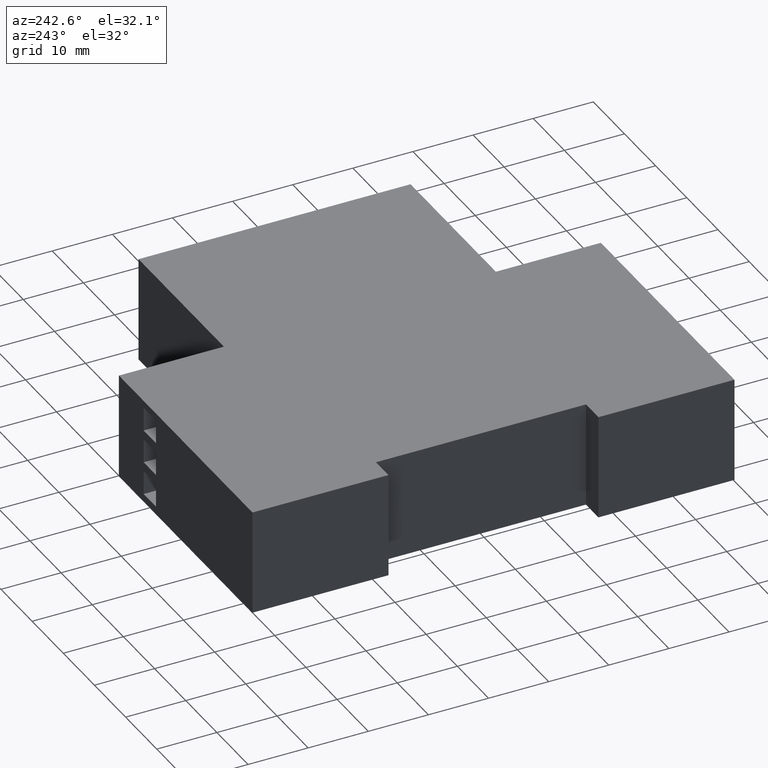
[diagram: clean part render]
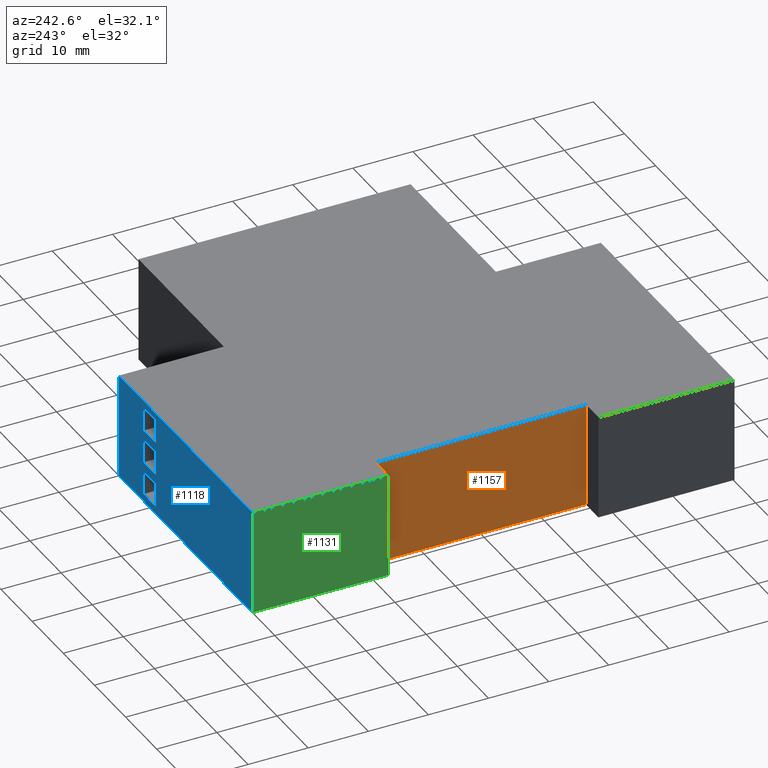
[diagram: same view with three faces highlighted in distinct colors, each labeled with its STEP entity id]
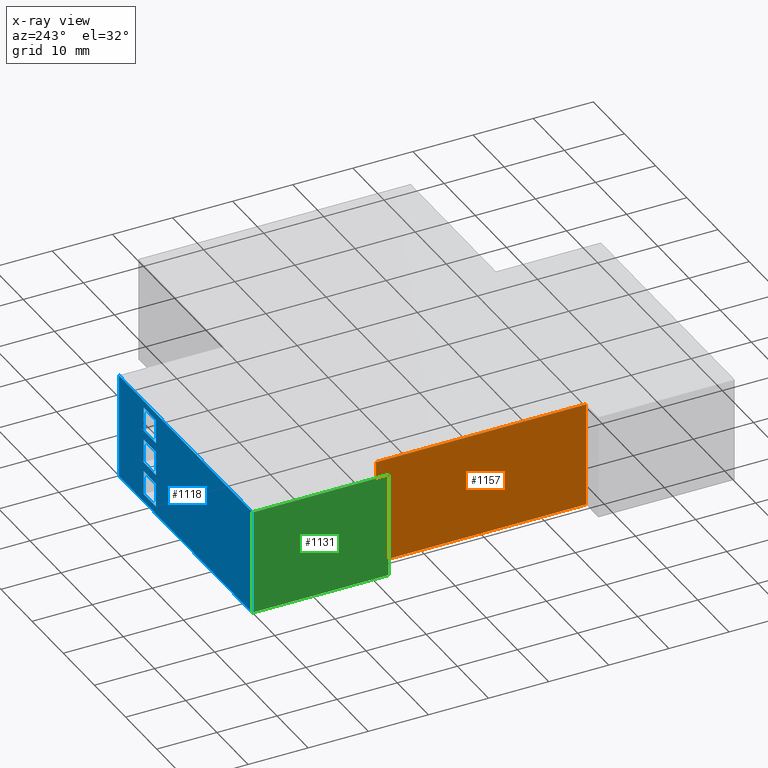
[diagram: x-ray of the same camera — body ghosted, the three highlighted faces saturated]
A machine part, auxiliary view with three faces highlighted in distinct colors.
The next image is the same camera in x-ray (body ghosted, the three faces saturated) — at least one of them is partly hidden behind the body in this view.
Their STEP definitions:

[orange] entity #1157 — the highlighted planar face has unit normal (-1, 0, 0).
#102=DIRECTION('',(0.E0,-1.E0,0.E0));
#103=VECTOR('',#102,1.375E0);
#104=CARTESIAN_POINT('',(-8.330434317903E-1,-8.429706133946E-1,6.875E-1));
#105=LINE('',#104,#103);
#150=DIRECTION('',(0.E0,-1.E0,0.E0));
#151=VECTOR('',#150,1.375E0);
#152=CARTESIAN_POINT('',(-8.330434317903E-1,-8.429706133946E-1,0.E0));
#153=LINE('',#152,#151);
#154=DIRECTION('',(0.E0,0.E0,-1.E0));
#155=VECTOR('',#154,6.875E-1);
#156=CARTESIAN_POINT('',(-8.330434317903E-1,-8.429706133946E-1,6.875E-1));
#157=LINE('',#156,#155);
#162=DIRECTION('',(0.E0,0.E0,-1.E0));
#163=VECTOR('',#162,6.875E-1);
#164=CARTESIAN_POINT('',(-8.330434317903E-1,-2.217970613395E0,6.875E-1));
#165=LINE('',#164,#163);
#898=CARTESIAN_POINT('',(-8.330434317903E-1,-2.217970613395E0,6.875E-1));
#899=VERTEX_POINT('',#898);
#900=CARTESIAN_POINT('',(-8.330434317903E-1,-2.217970613395E0,0.E0));
#901=VERTEX_POINT('',#900);
#902=CARTESIAN_POINT('',(-8.330434317903E-1,-8.429706133946E-1,6.875E-1));
#903=VERTEX_POINT('',#902);
#904=CARTESIAN_POINT('',(-8.330434317903E-1,-8.429706133946E-1,0.E0));
#905=VERTEX_POINT('',#904);
#1145=CARTESIAN_POINT('',(-8.330434317903E-1,-2.217970613395E0,0.E0));
#1146=DIRECTION('',(-1.E0,0.E0,0.E0));
#1147=DIRECTION('',(0.E0,0.E0,1.E0));
#1148=AXIS2_PLACEMENT_3D('',#1145,#1146,#1147);
#1149=PLANE('',#1148);
#1150=ORIENTED_EDGE('',*,*,#1021,.T.);
#1152=ORIENTED_EDGE('',*,*,#1151,.T.);
#1153=ORIENTED_EDGE('',*,*,#1057,.F.);
#1154=ORIENTED_EDGE('',*,*,#1138,.F.);
#1155=EDGE_LOOP('',(#1150,#1152,#1153,#1154));
#1156=FACE_OUTER_BOUND('',#1155,.F.);
#1157=ADVANCED_FACE('',(#1156),#1149,.T.);
#1021=EDGE_CURVE('',#903,#899,#105,.T.);
#1057=EDGE_CURVE('',#905,#901,#153,.T.);
#1138=EDGE_CURVE('',#903,#905,#157,.T.);
#1151=EDGE_CURVE('',#899,#901,#165,.T.);

[blue] entity #1118 — the highlighted planar face has unit normal (0, 1, 0).
#114=DIRECTION('',(-1.E0,0.E0,0.E0));
#115=VECTOR('',#114,1.6875E0);
#116=CARTESIAN_POINT('',(6.969565682097E-1,4.765438660540E-2,6.875E-1));
#117=LINE('',#116,#115);
#126=DIRECTION('',(-1.E0,0.E0,0.E0));
#127=VECTOR('',#126,1.6875E0);
#128=CARTESIAN_POINT('',(6.969565682097E-1,4.765438660540E-2,0.E0));
#129=LINE('',#128,#127);
#130=DIRECTION('',(0.E0,0.E0,-1.E0));
#131=VECTOR('',#130,6.875E-1);
#132=CARTESIAN_POINT('',(6.969565682097E-1,4.765438660540E-2,6.875E-1));
#133=LINE('',#132,#131);
#138=DIRECTION('',(0.E0,0.E0,-1.E0));
#139=VECTOR('',#138,6.875E-1);
#140=CARTESIAN_POINT('',(-9.905434317903E-1,4.765438660540E-2,6.875E-1));
#141=LINE('',#140,#139);
#274=DIRECTION('',(0.E0,0.E0,1.E0));
#275=VECTOR('',#274,1.56E-1);
#276=CARTESIAN_POINT('',(2.284565682097E-1,4.765438660540E-2,4.87E-2));
#277=LINE('',#276,#275);
#324=DIRECTION('',(0.E0,0.E0,-1.E0));
#325=VECTOR('',#324,1.56E-1);
#326=CARTESIAN_POINT('',(3.844565682097E-1,4.765438660540E-2,2.047E-1));
#327=LINE('',#326,#325);
#364=DIRECTION('',(-1.E0,0.E0,0.E0));
#365=VECTOR('',#364,1.56E-1);
#366=CARTESIAN_POINT('',(3.844565682097E-1,4.765438660540E-2,4.87E-2));
#367=LINE('',#366,#365);
#378=DIRECTION('',(1.E0,0.E0,0.E0));
#379=VECTOR('',#378,1.56E-1);
#380=CARTESIAN_POINT('',(2.284565682097E-1,4.765438660540E-2,2.047E-1));
#381=LINE('',#380,#379);
#438=DIRECTION('',(0.E0,0.E0,1.E0));
#439=VECTOR('',#438,1.56E-1);
#440=CARTESIAN_POINT('',(2.284565682097E-1,4.765438660540E-2,2.667E-1));
#441=LINE('',#440,#439);
#488=DIRECTION('',(0.E0,0.E0,-1.E0));
#489=VECTOR('',#488,1.56E-1);
#490=CARTESIAN_POINT('',(3.844565682097E-1,4.765438660540E-2,4.227E-1));
#491=LINE('',#490,#489);
#528=DIRECTION('',(-1.E0,0.E0,0.E0));
#529=VECTOR('',#528,1.56E-1);
#530=CARTESIAN_POINT('',(3.844565682097E-1,4.765438660540E-2,2.667E-1));
#531=LINE('',#530,#529);
#542=DIRECTION('',(1.E0,0.E0,0.E0));
#543=VECTOR('',#542,1.56E-1);
#544=CARTESIAN_POINT('',(2.284565682097E-1,4.765438660540E-2,4.227E-1));
#545=LINE('',#544,#543);
#602=DIRECTION('',(0.E0,0.E0,1.E0));
#603=VECTOR('',#602,1.56E-1);
#604=CARTESIAN_POINT('',(2.284565682097E-1,4.765438660540E-2,4.847E-1));
#605=LINE('',#604,#603);
#652=DIRECTION('',(0.E0,0.E0,-1.E0));
#653=VECTOR('',#652,1.56E-1);
#654=CARTESIAN_POINT('',(3.844565682097E-1,4.765438660540E-2,6.407E-1));
#655=LINE('',#654,#653);
#672=DIRECTION('',(-1.E0,0.E0,0.E0));
#673=VECTOR('',#672,1.56E-1);
#674=CARTESIAN_POINT('',(3.844565682097E-1,4.765438660540E-2,4.847E-1));
#675=LINE('',#674,#673);
#676=DIRECTION('',(1.E0,0.E0,0.E0));
#677=VECTOR('',#676,1.56E-1);
#678=CARTESIAN_POINT('',(2.284565682097E-1,4.765438660540E-2,6.407E-1));
#679=LINE('',#678,#677);
#800=CARTESIAN_POINT('',(3.844565682097E-1,4.765438660540E-2,4.227E-1));
#801=VERTEX_POINT('',#800);
#802=CARTESIAN_POINT('',(3.844565682097E-1,4.765438660540E-2,2.667E-1));
#803=VERTEX_POINT('',#802);
#806=CARTESIAN_POINT('',(2.284565682097E-1,4.765438660540E-2,2.667E-1));
#807=VERTEX_POINT('',#806);
#810=CARTESIAN_POINT('',(2.284565682097E-1,4.765438660540E-2,4.227E-1));
#811=VERTEX_POINT('',#810);
#824=CARTESIAN_POINT('',(3.844565682097E-1,4.765438660540E-2,2.047E-1));
#825=VERTEX_POINT('',#824);
#826=CARTESIAN_POINT('',(3.844565682097E-1,4.765438660540E-2,4.87E-2));
#827=VERTEX_POINT('',#826);
#830=CARTESIAN_POINT('',(2.284565682097E-1,4.765438660540E-2,4.87E-2));
#831=VERTEX_POINT('',#830);
#834=CARTESIAN_POINT('',(2.284565682097E-1,4.765438660540E-2,2.047E-1));
#835=VERTEX_POINT('',#834);
#848=CARTESIAN_POINT('',(3.844565682097E-1,4.765438660540E-2,6.407E-1));
#849=VERTEX_POINT('',#848);
#850=CARTESIAN_POINT('',(3.844565682097E-1,4.765438660540E-2,4.847E-1));
#851=VERTEX_POINT('',#850);
#854=CARTESIAN_POINT('',(2.284565682097E-1,4.765438660540E-2,4.847E-1));
#855=VERTEX_POINT('',#854);
#858=CARTESIAN_POINT('',(2.284565682097E-1,4.765438660540E-2,6.407E-1));
#859=VERTEX_POINT('',#858);
#867=CARTESIAN_POINT('',(6.969565682097E-1,4.765438660540E-2,6.875E-1));
#869=VERTEX_POINT('',#867);
#872=CARTESIAN_POINT('',(6.969565682097E-1,4.765438660540E-2,0.E0));
#873=VERTEX_POINT('',#872);
#910=CARTESIAN_POINT('',(-9.905434317903E-1,4.765438660540E-2,6.875E-1));
#911=VERTEX_POINT('',#910);
#912=CARTESIAN_POINT('',(-9.905434317903E-1,4.765438660540E-2,0.E0));
#913=VERTEX_POINT('',#912);
#1076=CARTESIAN_POINT('',(-9.905434317903E-1,4.765438660540E-2,0.E0));
#1077=DIRECTION('',(0.E0,1.E0,0.E0));
#1078=DIRECTION('',(0.E0,0.E0,1.E0));
#1079=AXIS2_PLACEMENT_3D('',#1076,#1077,#1078);
#1080=PLANE('',#1079);
#1081=ORIENTED_EDGE('',*,*,#1027,.T.);
#1083=ORIENTED_EDGE('',*,*,#1082,.T.);
#1084=ORIENTED_EDGE('',*,*,#1051,.F.);
#1085=ORIENTED_EDGE('',*,*,#976,.F.);
#1086=EDGE_LOOP('',(#1081,#1083,#1084,#1085));
#1087=FACE_OUTER_BOUND('',#1086,.F.);
#1089=ORIENTED_EDGE('',*,*,#1088,.T.);
#1091=ORIENTED_EDGE('',*,*,#1090,.T.);
#1093=ORIENTED_EDGE('',*,*,#1092,.T.);
#1095=ORIENTED_EDGE('',*,*,#1094,.T.);
#1096=EDGE_LOOP('',(#1089,#1091,#1093,#1095));
#1097=FACE_BOUND('',#1096,.F.);
#1099=ORIENTED_EDGE('',*,*,#1098,.T.);
#1101=ORIENTED_EDGE('',*,*,#1100,.T.);
#1103=ORIENTED_EDGE('',*,*,#1102,.T.);
#1105=ORIENTED_EDGE('',*,*,#1104,.T.);
#1106=EDGE_LOOP('',(#1099,#1101,#1103,#1105));
#1107=FACE_BOUND('',#1106,.F.);
#1109=ORIENTED_EDGE('',*,*,#1108,.T.);
#1111=ORIENTED_EDGE('',*,*,#1110,.T.);
#1113=ORIENTED_EDGE('',*,*,#1112,.T.);
#1115=ORIENTED_EDGE('',*,*,#1114,.T.);
#1116=EDGE_LOOP('',(#1109,#1111,#1113,#1115));
#1117=FACE_BOUND('',#1116,.F.);
#1118=ADVANCED_FACE('',(#1087,#1097,#1107,#1117),#1080,.T.);
#976=EDGE_CURVE('',#869,#873,#133,.T.);
#1027=EDGE_CURVE('',#869,#911,#117,.T.);
#1051=EDGE_CURVE('',#873,#913,#129,.T.);
#1082=EDGE_CURVE('',#911,#913,#141,.T.);
#1088=EDGE_CURVE('',#801,#803,#491,.T.);
#1090=EDGE_CURVE('',#803,#807,#531,.T.);
#1092=EDGE_CURVE('',#807,#811,#441,.T.);
#1094=EDGE_CURVE('',#811,#801,#545,.T.);
#1098=EDGE_CURVE('',#825,#827,#327,.T.);
#1100=EDGE_CURVE('',#827,#831,#367,.T.);
#1102=EDGE_CURVE('',#831,#835,#277,.T.);
#1104=EDGE_CURVE('',#835,#825,#381,.T.);
#1108=EDGE_CURVE('',#855,#859,#605,.T.);
#1110=EDGE_CURVE('',#859,#849,#679,.T.);
#1112=EDGE_CURVE('',#849,#851,#655,.T.);
#1114=EDGE_CURVE('',#851,#855,#675,.T.);

[green] entity #1131 — the highlighted planar face has unit normal (-1, 0, 0).
#110=DIRECTION('',(0.E0,-1.E0,0.E0));
#111=VECTOR('',#110,8.90625E-1);
#112=CARTESIAN_POINT('',(-9.905434317903E-1,4.765438660540E-2,6.875E-1));
#113=LINE('',#112,#111);
#134=DIRECTION('',(0.E0,-1.E0,0.E0));
#135=VECTOR('',#134,8.90625E-1);
#136=CARTESIAN_POINT('',(-9.905434317903E-1,4.765438660540E-2,0.E0));
#137=LINE('',#136,#135);
#138=DIRECTION('',(0.E0,0.E0,-1.E0));
#139=VECTOR('',#138,6.875E-1);
#140=CARTESIAN_POINT('',(-9.905434317903E-1,4.765438660540E-2,6.875E-1));
#141=LINE('',#140,#139);
#146=DIRECTION('',(0.E0,0.E0,-1.E0));
#147=VECTOR('',#146,6.875E-1);
#148=CARTESIAN_POINT('',(-9.905434317903E-1,-8.429706133946E-1,6.875E-1));
#149=LINE('',#148,#147);
#906=CARTESIAN_POINT('',(-9.905434317903E-1,-8.429706133946E-1,6.875E-1));
#907=VERTEX_POINT('',#906);
#908=CARTESIAN_POINT('',(-9.905434317903E-1,-8.429706133946E-1,0.E0));
#909=VERTEX_POINT('',#908);
#910=CARTESIAN_POINT('',(-9.905434317903E-1,4.765438660540E-2,6.875E-1));
#911=VERTEX_POINT('',#910);
#912=CARTESIAN_POINT('',(-9.905434317903E-1,4.765438660540E-2,0.E0));
#913=VERTEX_POINT('',#912);
#1119=CARTESIAN_POINT('',(-9.905434317903E-1,-8.429706133946E-1,0.E0));
#1120=DIRECTION('',(-1.E0,0.E0,0.E0));
#1121=DIRECTION('',(0.E0,0.E0,1.E0));
#1122=AXIS2_PLACEMENT_3D('',#1119,#1120,#1121);
#1123=PLANE('',#1122);
#1124=ORIENTED_EDGE('',*,*,#1025,.T.);
#1126=ORIENTED_EDGE('',*,*,#1125,.T.);
#1127=ORIENTED_EDGE('',*,*,#1053,.F.);
#1128=ORIENTED_EDGE('',*,*,#1082,.F.);
#1129=EDGE_LOOP('',(#1124,#1126,#1127,#1128));
#1130=FACE_OUTER_BOUND('',#1129,.F.);
#1131=ADVANCED_FACE('',(#1130),#1123,.T.);
#1025=EDGE_CURVE('',#911,#907,#113,.T.);
#1053=EDGE_CURVE('',#913,#909,#137,.T.);
#1082=EDGE_CURVE('',#911,#913,#141,.T.);
#1125=EDGE_CURVE('',#907,#909,#149,.T.);